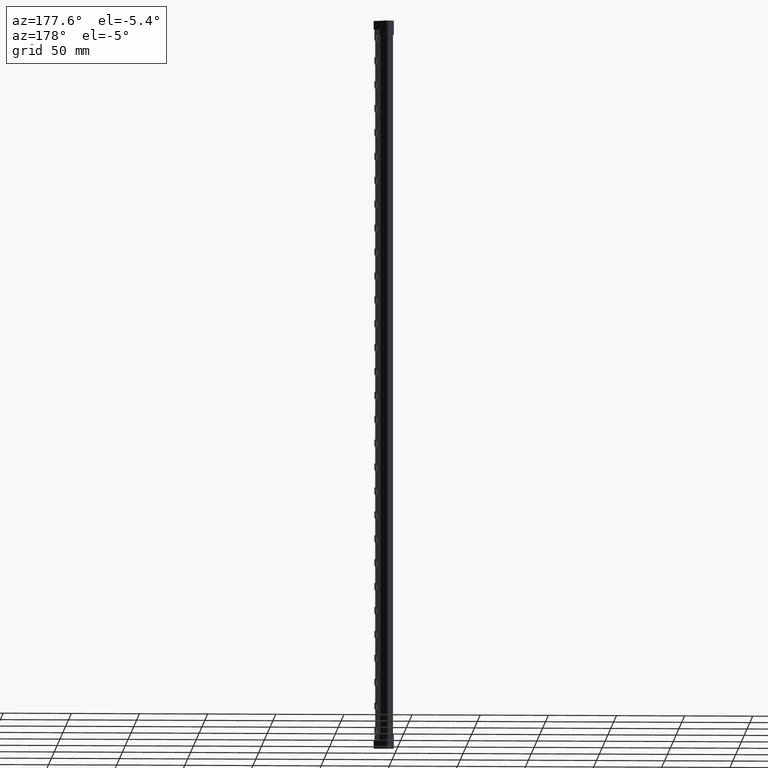
[diagram: clean part render]
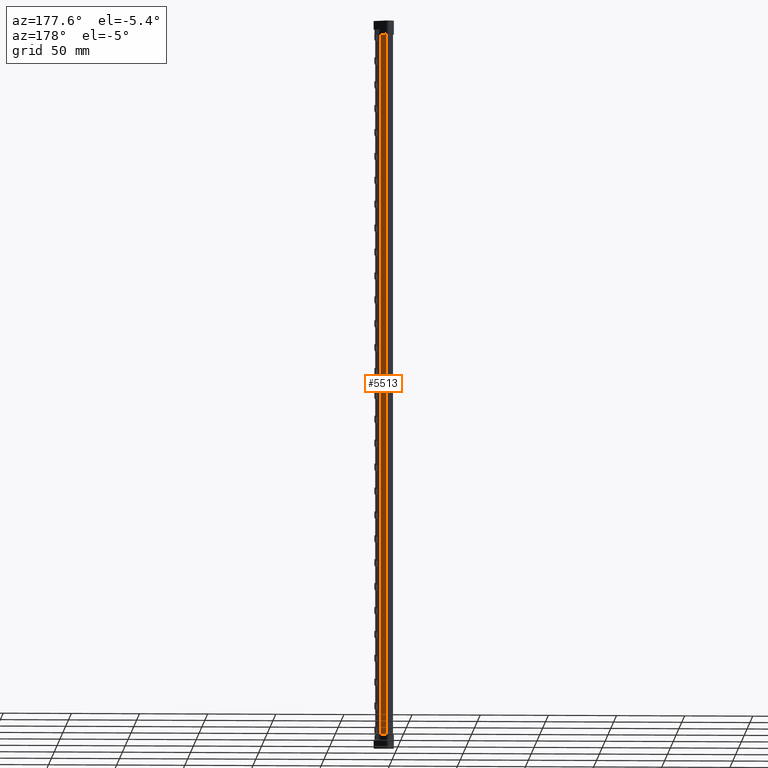
[diagram: same view with one face highlighted and labeled with its STEP entity id]
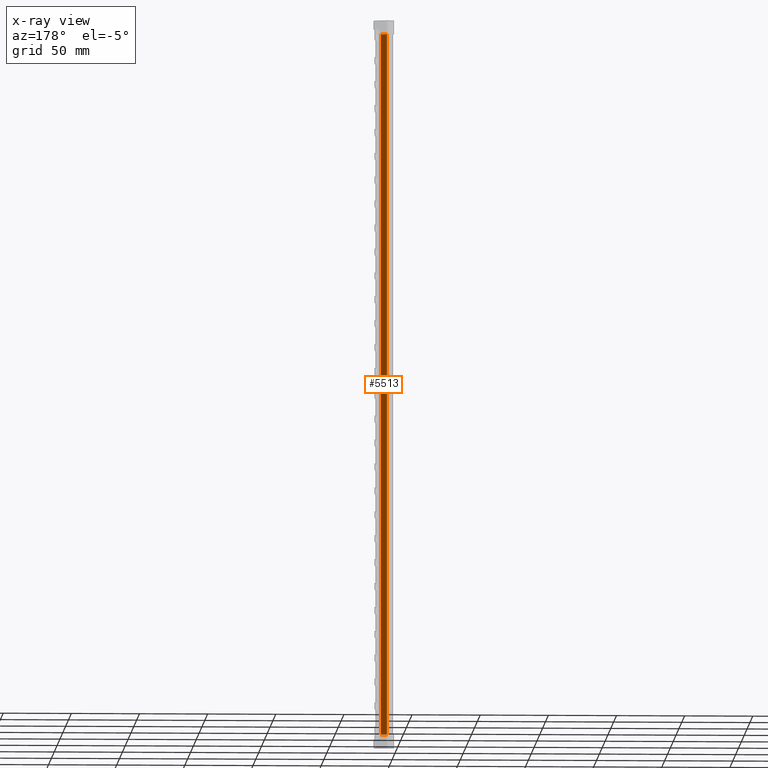
[diagram: x-ray of the same camera — body ghosted, the highlighted face saturated]
A machine part, auxiliary view. The second image highlights one B-rep face of the part: STEP entity #5513.
The next image is the same camera in x-ray: the body ghosted, the highlighted face saturated — about 0% of this face is hidden behind the body in this view.
In plain terms, the highlighted planar face has unit normal (-0.4021, -0.9156, 0).
Its self-contained STEP definition (entity closure, byte-faithful):
#15 = VECTOR ( 'NONE', #7394, 1000.000000000000000 ) ;
#29 = VECTOR ( 'NONE', #7117, 1000.000000000000000 ) ;
#111 = VECTOR ( 'NONE', #7419, 1000.000000000000200 ) ;
#124 = VECTOR ( 'NONE', #7453, 1000.000000000000000 ) ;
#5513 = ADVANCED_FACE ( 'NONE', ( #8817 ), #8809, .F. ) ;
#7116 = DIRECTION ( 'NONE',  ( 1.174935236590071400E-018, 5.041208906165829300E-019, 1.000000000000000000 ) ) ;
#7117 = DIRECTION ( 'NONE',  ( 0.9156028725539479000, -0.4020837969515297400, 3.538409553348890900E-026 ) ) ;
#7136 = LINE ( 'NONE', #7142, #29 ) ;
#7142 = CARTESIAN_POINT ( 'NONE',  ( 8.337549575065260400, 3.153584405884049000, -315.0000000000000600 ) ) ;
#7394 = DIRECTION ( 'NONE',  ( 3.864550688587075300E-026, -3.939912114750719300E-031, -1.000000000000000000 ) ) ;
#7405 = CARTESIAN_POINT ( 'NONE',  ( 4.041246672134439800, 5.040290789019096000, -309.5000000000001100 ) ) ;
#7407 = LINE ( 'NONE', #7405, #15 ) ;
#7412 = CARTESIAN_POINT ( 'NONE',  ( 9.056430818341246100, 2.837890223921217400, -305.9000000000000300 ) ) ;
#7414 = LINE ( 'NONE', #7444, #124 ) ;
#7419 = DIRECTION ( 'NONE',  ( -0.9156028725539471200, 0.4020837969515314000, -3.538409553349299000E-026 ) ) ;
#7444 = CARTESIAN_POINT ( 'NONE',  ( 8.337549575065260400, 3.153584405884049400, 219.0000000000000000 ) ) ;
#7452 = LINE ( 'NONE', #7412, #111 ) ;
#7453 = DIRECTION ( 'NONE',  ( -1.174935236590071000E-018, -5.041208906165829300E-019, -1.000000000000000000 ) ) ;
#8809 = PLANE ( 'NONE',  #30257 ) ;
#8812 = CARTESIAN_POINT ( 'NONE',  ( 8.337549575065260400, 3.153584405884049400, 219.0000000000000000 ) ) ;
#8815 = DIRECTION ( 'NONE',  ( -0.4020837969515297400, -0.9156028725539479000, 9.339969566632776300E-019 ) ) ;
#8817 = FACE_OUTER_BOUND ( 'NONE', #39010, .T. ) ;
#8823 = DIRECTION ( 'NONE',  ( 0.9156028725539479000, -0.4020837969515297400, -8.730752358650188400E-019 ) ) ;
#9413 = LINE ( 'NONE', #10281, #38196 ) ;
#9463 = DIRECTION ( 'NONE',  ( 3.864550688587075300E-026, -3.939912114750719300E-031, 1.000000000000000000 ) ) ;
#9465 = DIRECTION ( 'NONE',  ( -0.9156028725539479000, 0.4020837969515297400, 3.538409553348890900E-026 ) ) ;
#9473 = CARTESIAN_POINT ( 'NONE',  ( 4.041246672134439800, 5.040290789019096000, 213.5000000000000600 ) ) ;
#9486 = CARTESIAN_POINT ( 'NONE',  ( 2.089768278228537800, 5.897275695697959300, 209.9000000000000100 ) ) ;
#9499 = LINE ( 'NONE', #9486, #38252 ) ;
#9505 = LINE ( 'NONE', #9473, #38185 ) ;
#9587 = EDGE_CURVE ( 'NONE', #40581, #40601, #10526, .T. ) ;
#9905 = EDGE_CURVE ( 'NONE', #40496, #40598, #9499, .T. ) ;
#9928 = EDGE_CURVE ( 'NONE', #40598, #40601, #9505, .T. ) ;
#10125 = EDGE_CURVE ( 'NONE', #40779, #40581, #9413, .T. ) ;
#10158 = EDGE_CURVE ( 'NONE', #40779, #40710, #7136, .T. ) ;
#10274 = EDGE_CURVE ( 'NONE', #40715, #40710, #7407, .T. ) ;
#10281 = CARTESIAN_POINT ( 'NONE',  ( 4.023610798727805400, 5.048035521101578400, 219.0000000000000000 ) ) ;
#10310 = EDGE_CURVE ( 'NONE', #40687, #40715, #7452, .T. ) ;
#10314 = EDGE_CURVE ( 'NONE', #40496, #40687, #7414, .T. ) ;
#10502 = CARTESIAN_POINT ( 'NONE',  ( 12.90000028084913100, 1.150000146620297600, 219.0000000000000000 ) ) ;
#10526 = LINE ( 'NONE', #10502, #27401 ) ;
#10565 = DIRECTION ( 'NONE',  ( 0.9156028725539479000, -0.4020837969515297400, -3.538409553348890900E-026 ) ) ;
#15381 = CARTESIAN_POINT ( 'NONE',  ( 4.023610798727804500, 5.048035521101577500, -315.0000000000000600 ) ) ;
#20447 = CARTESIAN_POINT ( 'NONE',  ( 8.337551775103786900, 3.153583439744730200, 209.9000000000000100 ) ) ;
#20468 = CARTESIAN_POINT ( 'NONE',  ( 4.023610798727804500, 5.048035521101578400, 219.0000000000000000 ) ) ;
#20469 = CARTESIAN_POINT ( 'NONE',  ( 4.041246672134439800, 5.040290789019096000, 219.0000000000000000 ) ) ;
#20473 = CARTESIAN_POINT ( 'NONE',  ( 4.041246672134439800, 5.040290789019096000, 209.9000000000000100 ) ) ;
#20560 = CARTESIAN_POINT ( 'NONE',  ( 8.337551775103786900, 3.153583439744730200, -305.9000000000000300 ) ) ;
#20575 = CARTESIAN_POINT ( 'NONE',  ( 4.041246672134439800, 5.040290789019096000, -315.0000000000000600 ) ) ;
#20578 = CARTESIAN_POINT ( 'NONE',  ( 4.041246672134439800, 5.040290789019096000, -305.9000000000000300 ) ) ;
#27401 = VECTOR ( 'NONE', #10565, 1000.000000000000000 ) ;
#30257 = AXIS2_PLACEMENT_3D ( 'NONE', #8812, #8815, #8823 ) ;
#37219 = ORIENTED_EDGE ( 'NONE', *, *, #10274, .T. ) ;
#37283 = ORIENTED_EDGE ( 'NONE', *, *, #10158, .F. ) ;
#37290 = ORIENTED_EDGE ( 'NONE', *, *, #10314, .T. ) ;
#37291 = ORIENTED_EDGE ( 'NONE', *, *, #9587, .T. ) ;
#37310 = ORIENTED_EDGE ( 'NONE', *, *, #9905, .F. ) ;
#37313 = ORIENTED_EDGE ( 'NONE', *, *, #10125, .T. ) ;
#37325 = ORIENTED_EDGE ( 'NONE', *, *, #9928, .F. ) ;
#37333 = ORIENTED_EDGE ( 'NONE', *, *, #10310, .T. ) ;
#38185 = VECTOR ( 'NONE', #9463, 1000.000000000000000 ) ;
#38196 = VECTOR ( 'NONE', #7116, 1000.000000000000000 ) ;
#38252 = VECTOR ( 'NONE', #9465, 1000.000000000000000 ) ;
#39010 = EDGE_LOOP ( 'NONE', ( #37291, #37325, #37310, #37290, #37333, #37219, #37283, #37313 ) ) ;
#40496 = VERTEX_POINT ( 'NONE', #20447 ) ;
#40581 = VERTEX_POINT ( 'NONE', #20468 ) ;
#40598 = VERTEX_POINT ( 'NONE', #20473 ) ;
#40601 = VERTEX_POINT ( 'NONE', #20469 ) ;
#40687 = VERTEX_POINT ( 'NONE', #20560 ) ;
#40710 = VERTEX_POINT ( 'NONE', #20575 ) ;
#40715 = VERTEX_POINT ( 'NONE', #20578 ) ;
#40779 = VERTEX_POINT ( 'NONE', #15381 ) ;